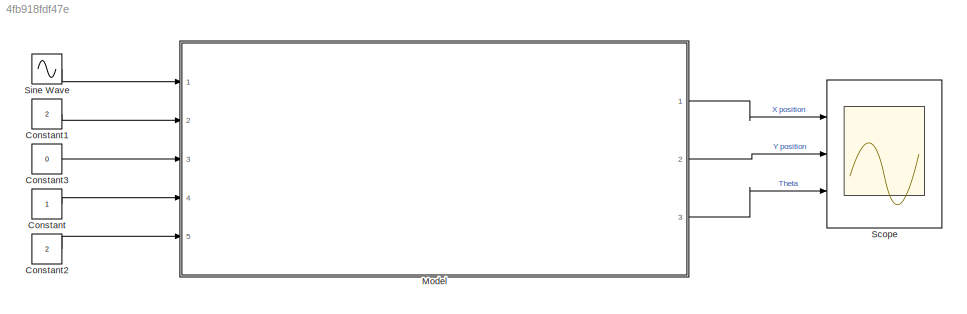
MODEL slx_4fb918fdf47e
KIND model
CONFIG AbsTol = auto
CONFIG EnableMultiTasking = off
CONFIG FixedStep = auto
CONFIG MaxStep = auto
CONFIG MinStep = auto
CONFIG RelTol = 1e-3
CONFIG SampleTimeConstraint = Unconstrained
CONFIG Solver = VariableStepAuto
CONFIG SolverName = VariableStepAuto
CONFIG StartTime = 0.0
CONFIG StopTime = 10
BLOCK [Constant] Constant
BLOCK [Constant] Constant1
  Value = 2
BLOCK [Constant] Constant2
  Value = 2
BLOCK [Constant] Constant3
  Value = 0
BLOCK [ModelReference] Model
  ModelNameDialog = Unicycle_Robot_Dynamics.slx
  ModelReferenceVersion = 1.3
  Ports = [5, 3]
  Variant = off
BLOCK [Scope] Scope
  NumInputPorts = 3
  Ports = [3]
  ScopeSpecificationString = Simulink.scopes.TimeScopeBlockCfg('CurrentConfiguration', extmgr.ConfigurationSet(extmgr.Configuration('Core','General UI',true),extmgr.Configuration('Core','Source UI',true),extmgr.Configuration('Sources','WiredSimulink',true),extmgr.Configuration('Visuals','Time Domain',true,'SerializedDisplays',{struct('MinYLimReal','-1.46915','MaxYLimReal','13.22231','YLabelReal','','MinYLimMag','0.00000','Max...<+1408ch>
BLOCK [Sin] Sine Wave
  Frequency = 0.01
  Ports = [0, 1]
  SampleTime = 0
LINE Constant1:1 -> Model:2
LINE Constant2:1 -> Model:5
LINE Constant3:1 -> Model:3
LINE Constant:1 -> Model:4
LINE Model:1 -> Scope:1
LINE Model:2 -> Scope:2
LINE Model:3 -> Scope:3
LINE Sine Wave:1 -> Model:1
